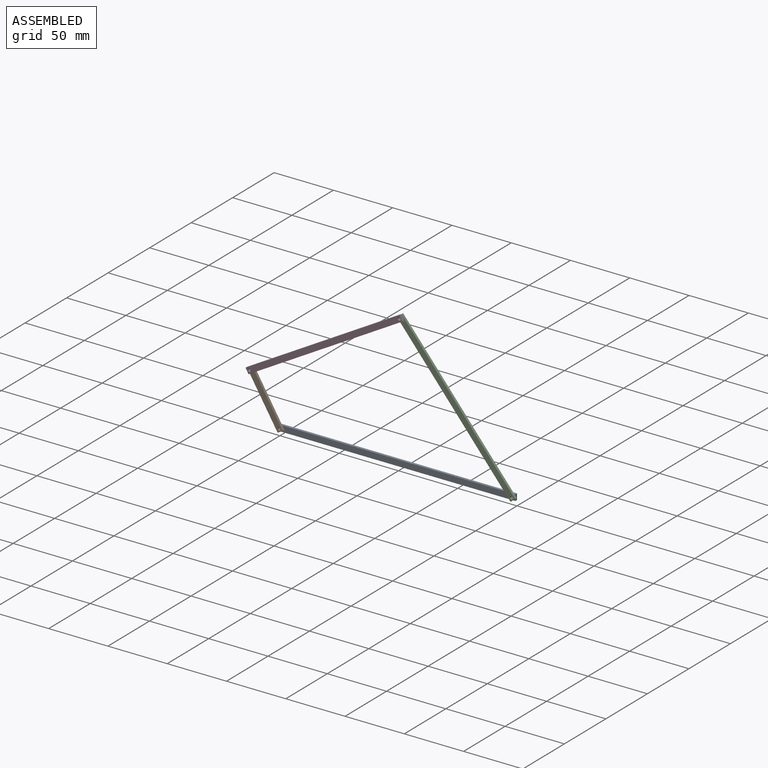
[diagram: assembled view]
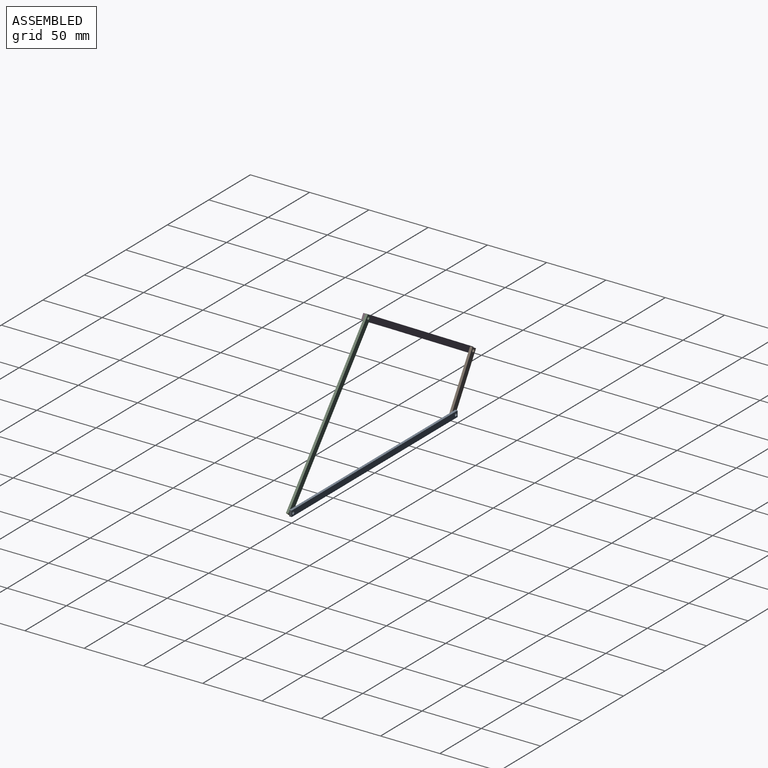
[diagram: assembled view, second angle]
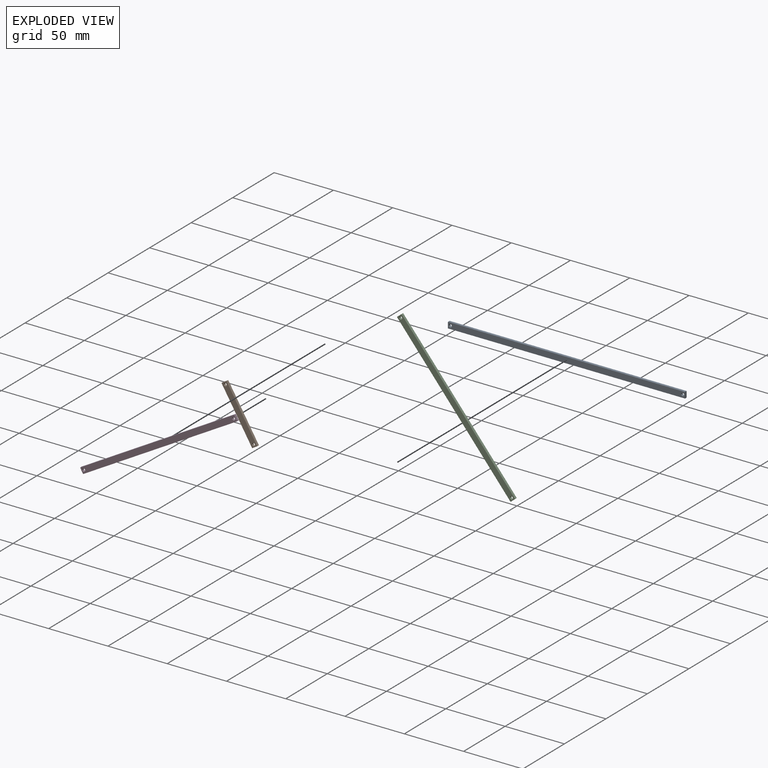
[diagram: exploded view]
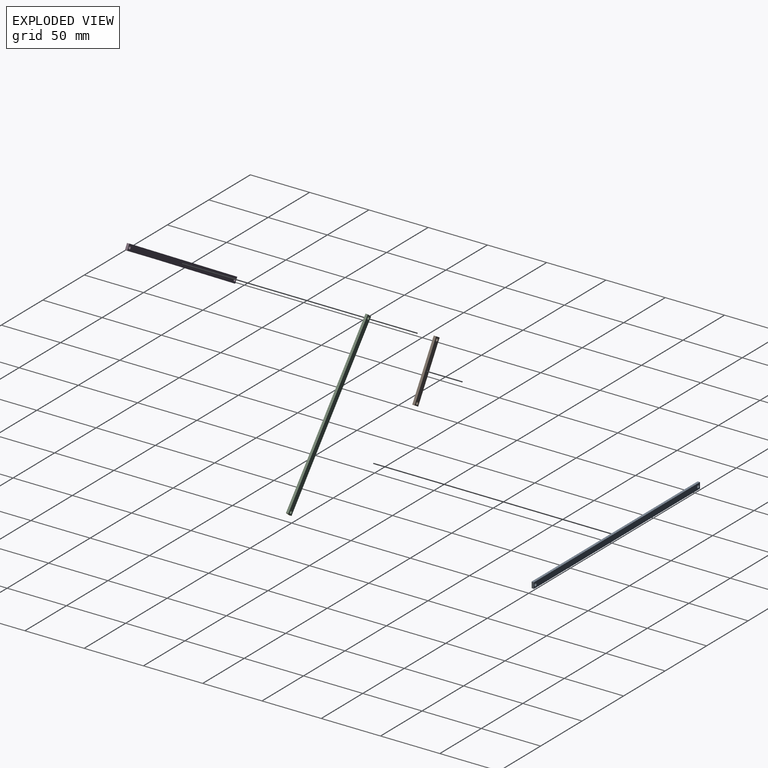
[diagram: exploded view, second angle]
ASSEMBLY  parts=4 mates=4
PART A: 8 faces, bbox 200x2x5 mm
  f0: plane 5x2mm, normal (-1,0,0), area 10mm2, adj f1,f4,f6,f7
  f1: plane 200x2mm, normal (0,0,-1), area 400mm2, adj f0,f2,f6,f7
  f2: plane 5x2mm, normal (1,0,0), area 10mm2, adj f1,f4,f6,f7
  f3: cylinder r=1.25mm len=2.5mm, axis (0,1,0), area 15.7mm2, adj f6,f7
  f4: plane 200x2mm, normal (0,0,1), area 400mm2, adj f0,f2,f6,f7
  f5: cylinder r=1.25mm len=2.5mm, axis (0,1,0), area 15.7mm2, adj f6,f7
  f6: plane 200x5mm, normal (0,-1,0), area 990.2mm2, adj f0,f1,f2,f3,f4,f5
  f7: plane 200x5mm, normal (0,1,0), area 990.2mm2, adj f0,f1,f2,f3,f4,f5
PART B: 8 faces, bbox 50x2x5 mm
  f0: plane 5x2mm, normal (-1,0,0), area 10mm2, adj f1,f4,f6,f7
  f1: plane 50x2mm, normal (0,0,-1), area 100mm2, adj f0,f2,f6,f7
  f2: plane 5x2mm, normal (1,0,0), area 10mm2, adj f1,f4,f6,f7
  f3: cylinder r=1.25mm len=2.5mm, axis (0,1,0), area 15.7mm2, adj f6,f7
  f4: plane 50x2mm, normal (0,0,1), area 100mm2, adj f0,f2,f6,f7
  f5: cylinder r=1.25mm len=2.5mm, axis (0,1,0), area 15.7mm2, adj f6,f7
  f6: plane 50x5mm, normal (0,-1,0), area 240.2mm2, adj f0,f1,f2,f3,f4,f5
  f7: plane 50x5mm, normal (0,1,0), area 240.2mm2, adj f0,f1,f2,f3,f4,f5
PART C: 8 faces, bbox 150x2x5 mm
  f0: plane 5x2mm, normal (-1,0,0), area 10mm2, adj f1,f4,f6,f7
  f1: plane 150x2mm, normal (0,0,-1), area 300mm2, adj f0,f2,f6,f7
  f2: plane 5x2mm, normal (1,0,0), area 10mm2, adj f1,f4,f6,f7
  f3: cylinder r=1.25mm len=2.5mm, axis (0,1,0), area 15.7mm2, adj f6,f7
  f4: plane 150x2mm, normal (0,0,1), area 300mm2, adj f0,f2,f6,f7
  f5: cylinder r=1.25mm len=2.5mm, axis (0,1,0), area 15.7mm2, adj f6,f7
  f6: plane 150x5mm, normal (0,-1,0), area 740.2mm2, adj f0,f1,f2,f3,f4,f5
  f7: plane 150x5mm, normal (0,1,0), area 740.2mm2, adj f0,f1,f2,f3,f4,f5
PART D: same geometry as C
PLACE A at identity fixed
PLACE B rot(axis=(0,-1,0),121.2deg) t=(-109.9,-2,19.68)mm
PLACE C rot(axis=(0,1,0),50.3deg) t=(51.34,-2,56.14)mm
PLACE D rot(axis=(0,-1,0),30deg) t=(-58.56,-4,75.82)mm
MATE revolute C.f3 <-> D.f5  axis (0,-1,0) through (4.68,-4,112.28)mm
MATE revolute A.f3 <-> B.f3  axis (0,-1,0) through (-98,-2,0)mm
MATE revolute B.f5 <-> D.f3  axis (0,-1,0) through (-121.8,-4,39.36)mm
MATE revolute C.f5 <-> A.f5  axis (0,1,0) through (98,-2,0)mm
